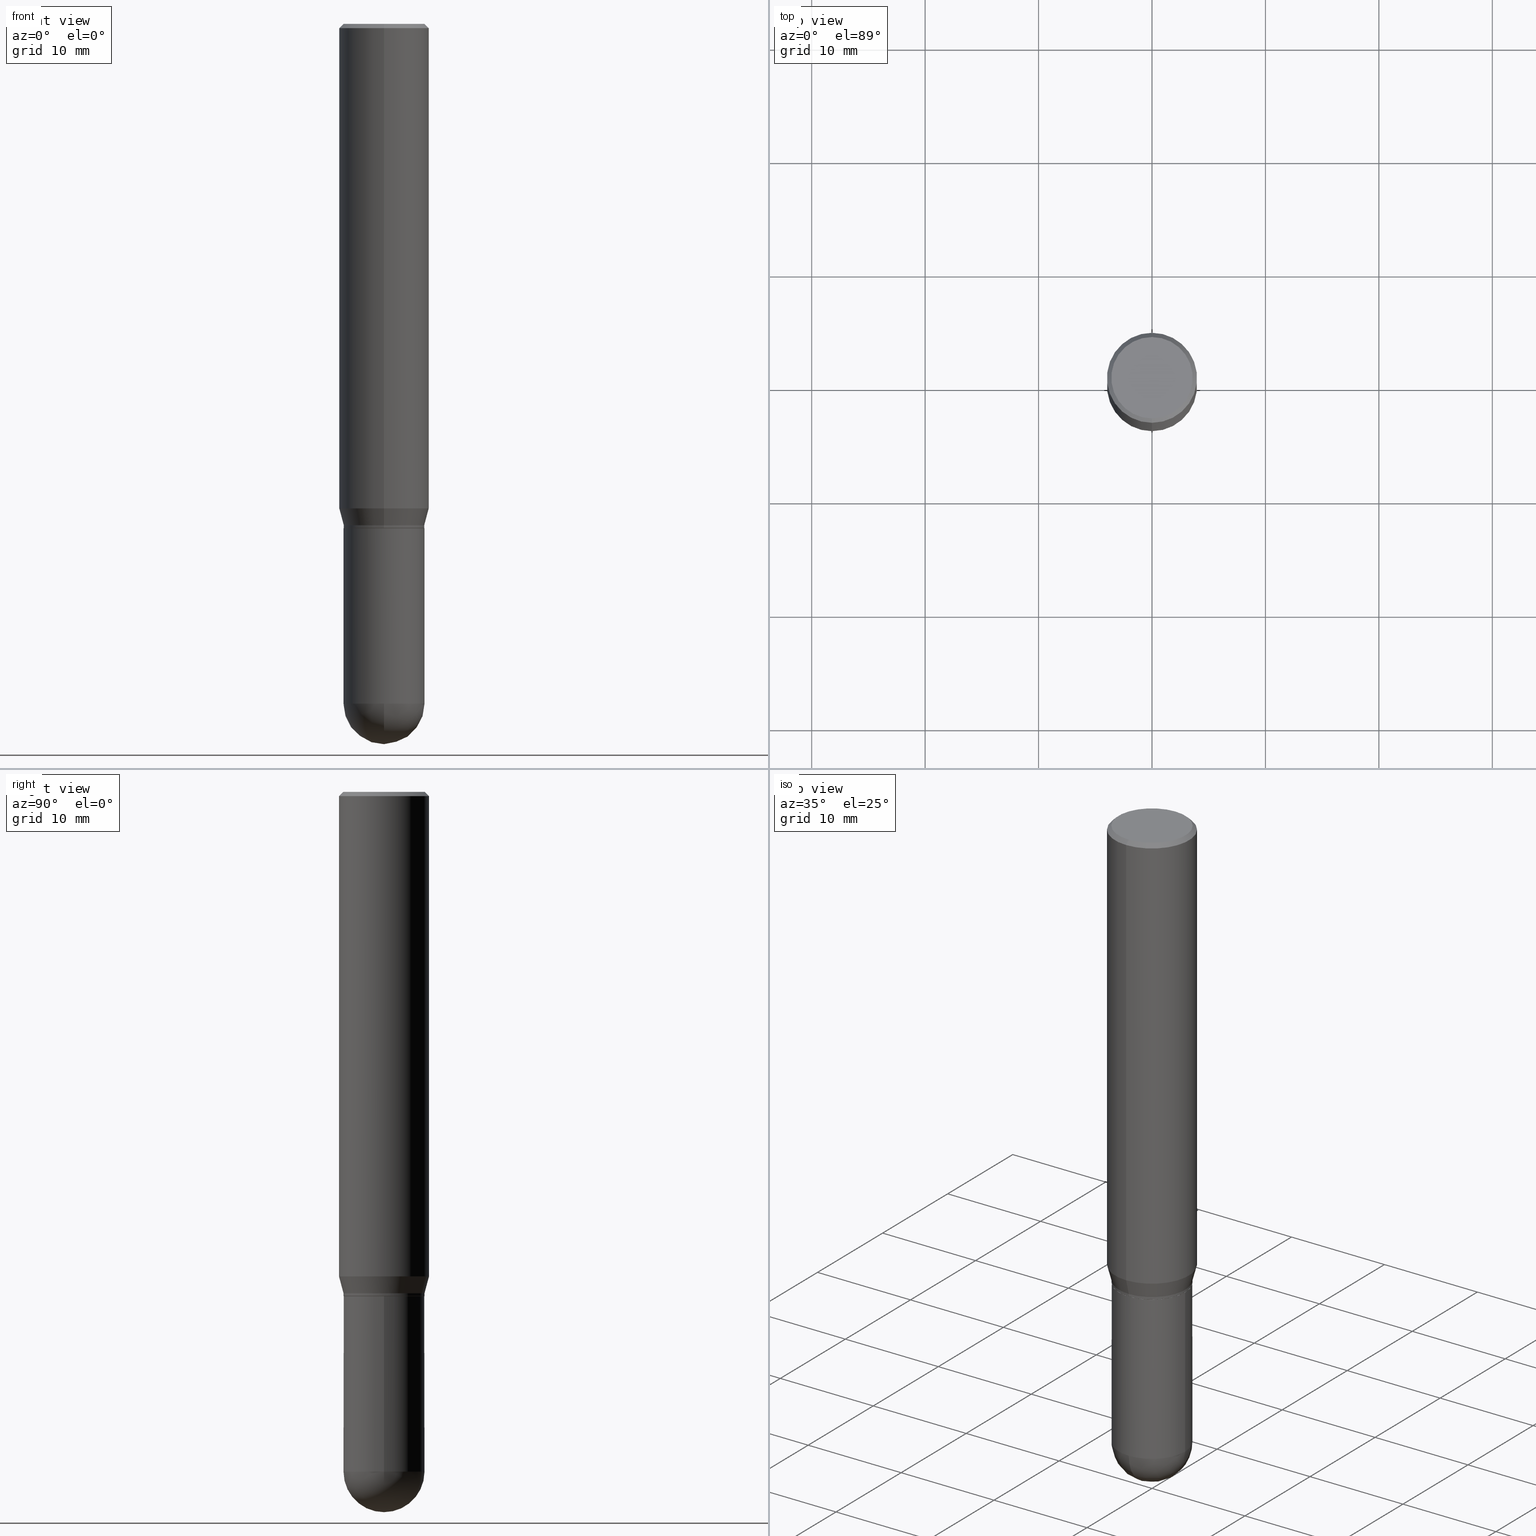
[diagram: canonical four-view strip — front | top / right | iso, engineering-drawing reading convention]
A machine part, canonical four-view strip (front | top / right | iso — engineering-drawing reading convention). The complete STEP part file that produces these views, byte-faithful:
ISO-10303-21;
HEADER;
FILE_DESCRIPTION (( 'STEP AP203' ),
    '1' );
FILE_NAME ('30536.STEP',
    '2024-03-08T15:31:25',
    ( '' ),
    ( '' ),
    'SwSTEP 2.0',
    'SolidWorks 2023',
    '' );
FILE_SCHEMA (( 'CONFIG_CONTROL_DESIGN' ));
ENDSEC;

DATA;
#1 = EDGE_LOOP ( 'NONE', ( #440, #433, #470, #113 ) ) ;
#2 = DATE_AND_TIME ( #359, #341 ) ;
#3 = DIRECTION ( 'NONE',  ( -2.445665582166115996E-29, 3.491199544438589874E-15, 1.000000000000000000 ) ) ;
#4 = DIRECTION ( 'NONE',  ( -2.445665582166115996E-29, 3.491199544438589874E-15, 1.000000000000000000 ) ) ;
#5 = CARTESIAN_POINT ( 'NONE',  ( -0.1406000000000000583, -6.174923620442310269E-15, -2.359399999999999942 ) ) ;
#6 = DESIGN_CONTEXT ( 'detailed design', #288, 'design' ) ;
#7 = CARTESIAN_POINT ( 'NONE',  ( -1.071952812151801215E-15, -0.1562500000000000833, -0.01499999999999947035 ) ) ;
#8 = EDGE_LOOP ( 'NONE', ( #322, #244, #189, #25 ) ) ;
#9 = AXIS2_PLACEMENT_3D ( 'NONE', #266, #76, #321 ) ;
#10 =( GEOMETRIC_REPRESENTATION_CONTEXT ( 3 ) GLOBAL_UNCERTAINTY_ASSIGNED_CONTEXT ( ( #286 ) ) GLOBAL_UNIT_ASSIGNED_CONTEXT ( ( #508, #312, #279 ) ) REPRESENTATION_CONTEXT ( 'NONE', 'WORKASPACE' ) );
#11 = ORIENTED_EDGE ( 'NONE', *, *, #274, .T. ) ;
#12 = CARTESIAN_POINT ( 'NONE',  ( 1.110223024625197561E-15, 0.1562499999999941436, -1.681593404861547514 ) ) ;
#13 = EDGE_CURVE ( 'NONE', #226, #354, #69, .T. ) ;
#14 = PERSON_AND_ORGANIZATION ( #396, #242 ) ;
#15 = APPROVAL_PERSON_ORGANIZATION ( #352, #365, #166 ) ;
#16 = DIRECTION ( 'NONE',  ( 1.000000000000000000, -6.982962677686270655E-15, 0.000000000000000000 ) ) ;
#17 = CYLINDRICAL_SURFACE ( 'NONE', #41, 0.1406000000000000028 ) ;
#18 = APPROVAL_ROLE ( '' ) ;
#19 = CARTESIAN_POINT ( 'NONE',  ( -9.818045524826459157E-16, -0.1406000000000059980, -1.739999999999999547 ) ) ;
#20 = DIRECTION ( 'NONE',  ( 1.000000000000000000, -6.982962677686265133E-15, 0.000000000000000000 ) ) ;
#21 = VECTOR ( 'NONE', #98, 39.37007874015748143 ) ;
#22 = LOCAL_TIME ( 10, 31, 25.00000000000000000, #152 ) ;
#23 = EDGE_CURVE ( 'NONE', #24, #234, #492, .T. ) ;
#24 = VERTEX_POINT ( 'NONE', #28 ) ;
#25 = ORIENTED_EDGE ( 'NONE', *, *, #232, .F. ) ;
#26 = PERSON_AND_ORGANIZATION_ROLE ( 'design_supplier' ) ;
#27 = DIRECTION ( 'NONE',  ( -2.445665582166115996E-29, 3.491199544438589874E-15, 1.000000000000000000 ) ) ;
#28 = CARTESIAN_POINT ( 'NONE',  ( 9.972467296393428329E-16, 0.1400999999999938961, -1.750000000000000666 ) ) ;
#29 = CARTESIAN_POINT ( 'NONE',  ( 0.000000000000000000, 0.000000000000000000, 0.000000000000000000 ) ) ;
#30 = DIRECTION ( 'NONE',  ( -6.982962677686265922E-15, -1.000000000000000000, 3.491199544438589874E-15 ) ) ;
#31 = VECTOR ( 'NONE', #104, 39.37007874015748143 ) ;
#32 = AXIS2_PLACEMENT_3D ( 'NONE', #307, #115, #265 ) ;
#33 = CARTESIAN_POINT ( 'NONE',  ( -9.783130711438031058E-16, -0.1401000000000061085, -1.749999999999999556 ) ) ;
#34 = DIRECTION ( 'NONE',  ( 1.000000000000000000, -6.982962677686270655E-15, 0.000000000000000000 ) ) ;
#35 = ORIENTED_EDGE ( 'NONE', *, *, #428, .F. ) ;
#36 = CARTESIAN_POINT ( 'NONE',  ( 0.1406000000000000028, -9.818045524826893030E-16, 6.855904546769086274E-30 ) ) ;
#37 = COORDINATED_UNIVERSAL_TIME_OFFSET ( 5, 0, .BEHIND. ) ;
#38 = CARTESIAN_POINT ( 'NONE',  ( -0.1406000000000000028, 9.990230864787008809E-16, -6.916022736898399140E-30 ) ) ;
#39 = PERSON_AND_ORGANIZATION ( #396, #242 ) ;
#40 = DIRECTION ( 'NONE',  ( 6.982962677686265922E-15, 1.000000000000000000, -3.885985766236502230E-15 ) ) ;
#41 = AXIS2_PLACEMENT_3D ( 'NONE', #29, #74, #260 ) ;
#42 = DIRECTION ( 'NONE',  ( 0.000000000000000000, 0.000000000000000000, 1.000000000000000000 ) ) ;
#43 = EDGE_LOOP ( 'NONE', ( #45, #284, #267, #70 ) ) ;
#44 = CARTESIAN_POINT ( 'NONE',  ( 9.818045524827470871E-16, 0.1405999999999918426, -2.359400000000000386 ) ) ;
#45 = ORIENTED_EDGE ( 'NONE', *, *, #493, .F. ) ;
#46 = DIRECTION ( 'NONE',  ( -2.445665582166115996E-29, 3.491199544438589874E-15, 1.000000000000000000 ) ) ;
#47 = CARTESIAN_POINT ( 'NONE',  ( 0.000000000000000000, 0.000000000000000000, 0.000000000000000000 ) ) ;
#48 = EDGE_LOOP ( 'NONE', ( #427, #269, #361, #324, #140 ) ) ;
#49 = AXIS2_PLACEMENT_3D ( 'NONE', #47, #42, #208 ) ;
#50 = DIRECTION ( 'NONE',  ( -2.445665582166115716E-29, 3.491199544438589874E-15, 1.000000000000000000 ) ) ;
#51 = CYLINDRICAL_SURFACE ( 'NONE', #32, 0.1562500000000000000 ) ;
#52 = CC_DESIGN_PERSON_AND_ORGANIZATION_ASSIGNMENT ( #227, #236, ( #401 ) ) ;
#53 = AXIS2_PLACEMENT_3D ( 'NONE', #294, #454, #450 ) ;
#54 = AXIS2_PLACEMENT_3D ( 'NONE', #78, #305, #225 ) ;
#55 = CARTESIAN_POINT ( 'NONE',  ( 5.769839101313211634E-29, -8.237801070866517629E-15, -2.359399999999999942 ) ) ;
#56 = DIRECTION ( 'NONE',  ( -6.982962677686265922E-15, -1.000000000000000000, 3.899854380677035588E-15 ) ) ;
#57 = DIRECTION ( 'NONE',  ( 2.445665582166115996E-29, -3.491199544438589874E-15, -1.000000000000000000 ) ) ;
#58 = DIRECTION ( 'NONE',  ( -2.445468806185136597E-29, 3.491481338843145583E-15, 1.000000000000000000 ) ) ;
#59 = DIRECTION ( 'NONE',  ( -2.445665582166115996E-29, 3.491199544438589874E-15, 1.000000000000000000 ) ) ;
#60 = EDGE_LOOP ( 'NONE', ( #469, #395 ) ) ;
#61 = CARTESIAN_POINT ( 'NONE',  ( -0.1406000000000000028, -6.174923620442310269E-15, -1.750000000000000222 ) ) ;
#62 = CYLINDRICAL_SURFACE ( 'NONE', #155, 0.1405999999999999195 ) ;
#63 = DIMENSIONAL_EXPONENTS ( 1.000000000000000000, 0.000000000000000000, 0.000000000000000000, 0.000000000000000000, 0.000000000000000000, 0.000000000000000000, 0.000000000000000000 ) ;
#64 = AXIS2_PLACEMENT_3D ( 'NONE', #228, #123, #89 ) ;
#65 = CIRCLE ( 'NONE', #394, 0.1562500000000000000 ) ;
#66 = PLANE ( 'NONE',  #276 ) ;
#67 = CC_DESIGN_DATE_AND_TIME_ASSIGNMENT ( #507, #121, ( #460 ) ) ;
#68 = EDGE_CURVE ( 'NONE', #431, #162, #496, .T. ) ;
#69 = LINE ( 'NONE', #290, #186 ) ;
#70 = ORIENTED_EDGE ( 'NONE', *, *, #353, .F. ) ;
#71 = APPROVAL_STATUS ( 'not_yet_approved' ) ;
#72 = ADVANCED_FACE ( 'NONE', ( #447 ), #193, .F. ) ;
#73 = ORIENTED_EDGE ( 'NONE', *, *, #68, .T. ) ;
#74 = DIRECTION ( 'NONE',  ( -2.445468806185136597E-29, 3.491481338843145583E-15, 1.000000000000000000 ) ) ;
#75 = DATE_TIME_ROLE ( 'creation_date' ) ;
#76 = DIRECTION ( 'NONE',  ( -2.445665582166115996E-29, 3.491199544438589874E-15, 1.000000000000000000 ) ) ;
#77 = CIRCLE ( 'NONE', #414, 0.1406000000000000305 ) ;
#78 = CARTESIAN_POINT ( 'NONE',  ( 5.757815463287349061E-29, -8.255019604862529009E-15, -2.359399999999999942 ) ) ;
#79 = CIRCLE ( 'NONE', #326, 0.1562500000000000000 ) ;
#80 = DIRECTION ( 'NONE',  ( -2.445665582166115996E-29, 3.491199544438589874E-15, 1.000000000000000000 ) ) ;
#81 = ORIENTED_EDGE ( 'NONE', *, *, #271, .F. ) ;
#82 = DIRECTION ( 'NONE',  ( -2.445468806185136597E-29, 3.491481338843145583E-15, 1.000000000000000000 ) ) ;
#83 = VERTEX_POINT ( 'NONE', #406 ) ;
#84 = PERSON_AND_ORGANIZATION ( #396, #242 ) ;
#85 = CARTESIAN_POINT ( 'NONE',  ( 4.139469948881899013E-46, -5.909113537491046332E-32, -1.692573988474575902E-17 ) ) ;
#86 = ORIENTED_EDGE ( 'NONE', *, *, #468, .F. ) ;
#87 = AXIS2_PLACEMENT_3D ( 'NONE', #348, #139, #430 ) ;
#88 = AXIS2_PLACEMENT_3D ( 'NONE', #199, #390, #40 ) ;
#89 = DIRECTION ( 'NONE',  ( 6.982962677686266711E-15, 1.000000000000000000, 0.000000000000000000 ) ) ;
#90 = ADVANCED_FACE ( 'NONE', ( #262 ), #109, .T. ) ;
#91 = ADVANCED_FACE ( 'NONE', ( #107 ), #62, .T. ) ;
#92 = CARTESIAN_POINT ( 'NONE',  ( 0.1406000000000000028, -7.091896895458194566E-15, -1.750000000000000222 ) ) ;
#93 = CC_DESIGN_DATE_AND_TIME_ASSIGNMENT ( #197, #75, ( #184 ) ) ;
#94 = COORDINATED_UNIVERSAL_TIME_OFFSET ( 5, 0, .BEHIND. ) ;
#95 = VECTOR ( 'NONE', #50, 39.37007874015748143 ) ;
#96 = MANIFOLD_SOLID_BREP ( 'Body-Move/Copy2[2]', #477 ) ;
#97 = ADVANCED_FACE ( 'NONE', ( #418 ), #458, .T. ) ;
#98 = DIRECTION ( 'NONE',  ( -4.937700262164631661E-15, -0.7071067811865571207, 0.7071067811865379138 ) ) ;
#99 = CLOSED_SHELL ( 'NONE', ( #336, #159, #399, #481, #397 ) ) ;
#100 = EDGE_CURVE ( 'NONE', #131, #83, #497, .T. ) ;
#101 = DIRECTION ( 'NONE',  ( 5.024295867788147587E-15, 0.7071067811865620056, 0.7071067811865330288 ) ) ;
#102 = AXIS2_PLACEMENT_3D ( 'NONE', #183, #27, #214 ) ;
#103 = CARTESIAN_POINT ( 'NONE',  ( 4.279570410823989044E-29, -6.110092342975505460E-15, -1.750000000000000222 ) ) ;
#104 = DIRECTION ( 'NONE',  ( 1.839019923739597160E-15, 0.2588190451025245142, 0.9659258262890673130 ) ) ;
#105 = DIRECTION ( 'NONE',  ( -2.445665582166115716E-29, 3.491199544438589874E-15, 1.000000000000000000 ) ) ;
#106 = DIRECTION ( 'NONE',  ( -6.982962677686265133E-15, -1.000000000000000000, 3.885985766236507752E-15 ) ) ;
#107 = FACE_OUTER_BOUND ( 'NONE', #151, .T. ) ;
#108 = CARTESIAN_POINT ( 'NONE',  ( -1.091087918388478976E-15, -0.1562500000000000000, 5.454999288185296309E-16 ) ) ;
#109 = CONICAL_SURFACE ( 'NONE', #466, 0.1405999999999999195, 0.2617993877991497964 ) ;
#110 = CIRCLE ( 'NONE', #220, 0.1406000000000000305 ) ;
#111 = CARTESIAN_POINT ( 'NONE',  ( 1.091087918388479371E-15, 0.1562499999999999445, -0.01500000000000056323 ) ) ;
#112 = EDGE_CURVE ( 'NONE', #24, #243, #219, .T. ) ;
#113 = ORIENTED_EDGE ( 'NONE', *, *, #498, .T. ) ;
#114 = LINE ( 'NONE', #111, #283 ) ;
#115 = DIRECTION ( 'NONE',  ( -2.445665582166115996E-29, 3.491199544438589874E-15, 1.000000000000000000 ) ) ;
#116 = FACE_OUTER_BOUND ( 'NONE', #48, .T. ) ;
#117 = ORIENTED_EDGE ( 'NONE', *, *, #328, .T. ) ;
#118 = AXIS2_PLACEMENT_3D ( 'NONE', #462, #181, #56 ) ;
#119 = ORIENTED_EDGE ( 'NONE', *, *, #441, .T. ) ;
#120 = APPLICATION_PROTOCOL_DEFINITION ( 'international standard', 'config_control_design', 1994, #288 ) ;
#121 = DATE_TIME_ROLE ( 'classification_date' ) ;
#122 = DIRECTION ( 'NONE',  ( -6.982962677686265133E-15, -1.000000000000000000, 3.496765431890256920E-15 ) ) ;
#123 = DIRECTION ( 'NONE',  ( 1.000000000000000000, -6.982962677686265922E-15, 4.883557194083112340E-29 ) ) ;
#124 = ORIENTED_EDGE ( 'NONE', *, *, #443, .F. ) ;
#125 = SHAPE_DEFINITION_REPRESENTATION ( #340, #318 ) ;
#126 = CIRCLE ( 'NONE', #303, 0.1406000000000000305 ) ;
#127 = DIRECTION ( 'NONE',  ( -6.982962677686265133E-15, -1.000000000000000000, 3.885985766236507752E-15 ) ) ;
#128 = CIRCLE ( 'NONE', #156, 0.1562500000000000000 ) ;
#129 = CARTESIAN_POINT ( 'NONE',  ( 1.054623055551970126E-15, 0.1405999999999938410, -1.740000000000000657 ) ) ;
#130 = EDGE_LOOP ( 'NONE', ( #158, #417 ) ) ;
#131 = VERTEX_POINT ( 'NONE', #308 ) ;
#132 = VERTEX_POINT ( 'NONE', #463 ) ;
#133 = LOCAL_TIME ( 10, 31, 25.00000000000000000, #182 ) ;
#134 = EDGE_LOOP ( 'NONE', ( #490, #163, #200, #330 ) ) ;
#135 = CARTESIAN_POINT ( 'NONE',  ( 6.107660196449910766E-29, -8.737312614105869844E-15, -2.500000000000000000 ) ) ;
#136 = FACE_OUTER_BOUND ( 'NONE', #134, .T. ) ;
#137 = EDGE_CURVE ( 'NONE', #175, #230, #77, .T. ) ;
#138 = DIRECTION ( 'NONE',  ( -2.445665582166115996E-29, 3.491199544438589874E-15, 1.000000000000000000 ) ) ;
#139 = DIRECTION ( 'NONE',  ( -2.445665582166115996E-29, 3.491199544438589874E-15, 1.000000000000000000 ) ) ;
#140 = ORIENTED_EDGE ( 'NONE', *, *, #432, .T. ) ;
#141 = DIRECTION ( 'NONE',  ( -6.982962677686265922E-15, -1.000000000000000000, 3.899854380677035588E-15 ) ) ;
#142 = DIRECTION ( 'NONE',  ( -6.982962677686266711E-15, -1.000000000000000000, 3.885985766236507752E-15 ) ) ;
#143 = VECTOR ( 'NONE', #174, 39.37007874015748143 ) ;
#144 = PRODUCT_RELATED_PRODUCT_CATEGORY ( 'detail', '', ( #401 ) ) ;
#145 = DIRECTION ( 'NONE',  ( 6.982962677686265922E-15, 1.000000000000000000, -3.491199544438589874E-15 ) ) ;
#146 = EDGE_CURVE ( 'NONE', #243, #24, #387, .T. ) ;
#147 = DIRECTION ( 'NONE',  ( 2.445665582166115716E-29, -3.491199544438589874E-15, -1.000000000000000000 ) ) ;
#148 = EDGE_CURVE ( 'NONE', #256, #175, #473, .T. ) ;
#149 = AXIS2_PLACEMENT_3D ( 'NONE', #264, #424, #499 ) ;
#150 = CIRCLE ( 'NONE', #388, 0.1406000000000000028 ) ;
#151 = EDGE_LOOP ( 'NONE', ( #187, #355, #503, #86 ) ) ;
#152 = COORDINATED_UNIVERSAL_TIME_OFFSET ( 5, 0, .BEHIND. ) ;
#153 = EDGE_CURVE ( 'NONE', #243, #226, #380, .T. ) ;
#154 = EDGE_LOOP ( 'NONE', ( #246, #273, #299, #506 ) ) ;
#155 = AXIS2_PLACEMENT_3D ( 'NONE', #374, #415, #301 ) ;
#156 = AXIS2_PLACEMENT_3D ( 'NONE', #164, #317, #169 ) ;
#157 = CARTESIAN_POINT ( 'NONE',  ( 4.279914768790703134E-29, -6.109599202767532182E-15, -1.750000000000000222 ) ) ;
#158 = ORIENTED_EDGE ( 'NONE', *, *, #211, .T. ) ;
#159 = ADVANCED_FACE ( 'NONE', ( #238 ), #334, .T. ) ;
#160 = ORIENTED_EDGE ( 'NONE', *, *, #295, .T. ) ;
#161 = DIRECTION ( 'NONE',  ( -2.445665582166115996E-29, 3.491199544438589874E-15, 1.000000000000000000 ) ) ;
#162 = VERTEX_POINT ( 'NONE', #171 ) ;
#163 = ORIENTED_EDGE ( 'NONE', *, *, #224, .T. ) ;
#164 = CARTESIAN_POINT ( 'NONE',  ( 3.668498373249178251E-31, -5.236799316657890950E-17, -0.01500000000000001679 ) ) ;
#165 = ORIENTED_EDGE ( 'NONE', *, *, #23, .T. ) ;
#166 = APPROVAL_ROLE ( '' ) ;
#167 = APPROVAL ( #272, 'UNSPECIFIED' ) ;
#168 = AXIS2_PLACEMENT_3D ( 'NONE', #337, #147, #145 ) ;
#169 = DIRECTION ( 'NONE',  ( -6.982962677686265133E-15, -1.000000000000000000, 3.496765431890256920E-15 ) ) ;
#170 = DIRECTION ( 'NONE',  ( -4.851104656540965064E-15, -0.7071067811865501263, -0.7071067811865449082 ) ) ;
#171 = CARTESIAN_POINT ( 'NONE',  ( -1.091087918388478779E-15, -0.1562500000000000833, -0.01499999999999947035 ) ) ;
#172 = ORIENTED_EDGE ( 'NONE', *, *, #137, .F. ) ;
#173 = VERTEX_POINT ( 'NONE', #92 ) ;
#174 = DIRECTION ( 'NONE',  ( -2.445468806185136877E-29, 3.491481338843145188E-15, 1.000000000000000000 ) ) ;
#175 = VERTEX_POINT ( 'NONE', #44 ) ;
#176 = AXIS2_PLACEMENT_3D ( 'NONE', #483, #138, #142 ) ;
#177 = CC_DESIGN_APPROVAL ( #471, ( #373 ) ) ;
#178 = LINE ( 'NONE', #190, #31 ) ;
#179 = ADVANCED_FACE ( 'NONE', ( #335 ), #292, .T. ) ;
#180 = CARTESIAN_POINT ( 'NONE',  ( 5.769839101313211634E-29, -8.237801070866517629E-15, -2.359399999999999942 ) ) ;
#181 = DIRECTION ( 'NONE',  ( -2.445665582166115996E-29, 3.491199544438589874E-15, 1.000000000000000000 ) ) ;
#182 = COORDINATED_UNIVERSAL_TIME_OFFSET ( 5, 0, .BEHIND. ) ;
#183 = CARTESIAN_POINT ( 'NONE',  ( 0.000000000000000000, 0.000000000000000000, 0.000000000000000000 ) ) ;
#184 = PRODUCT_DEFINITION ( 'UNKNOWN', '', #373, #6 ) ;
#185 = LINE ( 'NONE', #487, #356 ) ;
#186 = VECTOR ( 'NONE', #222, 39.37007874015748143 ) ;
#187 = ORIENTED_EDGE ( 'NONE', *, *, #224, .F. ) ;
#188 = AXIS2_PLACEMENT_3D ( 'NONE', #360, #237, #429 ) ;
#189 = ORIENTED_EDGE ( 'NONE', *, *, #432, .F. ) ;
#190 = CARTESIAN_POINT ( 'NONE',  ( 9.990230864787428877E-16, 0.1405999999999938410, -1.740000000000000657 ) ) ;
#191 = EDGE_CURVE ( 'NONE', #354, #366, #314, .T. ) ;
#192 = DIRECTION ( 'NONE',  ( -2.445665582166115716E-29, 3.491199544438589874E-15, 1.000000000000000000 ) ) ;
#193 = PLANE ( 'NONE',  #168 ) ;
#194 = CONICAL_SURFACE ( 'NONE', #249, 0.1401000000000000023, 0.7853981633974653764 ) ;
#195 = CIRCLE ( 'NONE', #202, 0.1562500000000000000 ) ;
#196 = CC_DESIGN_APPROVAL ( #365, ( #460 ) ) ;
#197 = DATE_AND_TIME ( #452, #333 ) ;
#198 = ORIENTED_EDGE ( 'NONE', *, *, #441, .F. ) ;
#199 = CARTESIAN_POINT ( 'NONE',  ( 5.757815463287349061E-29, -8.255019604862529009E-15, -2.359399999999999942 ) ) ;
#200 = ORIENTED_EDGE ( 'NONE', *, *, #191, .F. ) ;
#201 = ORIENTED_EDGE ( 'NONE', *, *, #191, .T. ) ;
#202 = AXIS2_PLACEMENT_3D ( 'NONE', #327, #161, #323 ) ;
#203 = MECHANICAL_CONTEXT ( 'NONE', #261, 'mechanical' ) ;
#204 = DIRECTION ( 'NONE',  ( -2.445468806185136597E-29, 3.491481338843145583E-15, 1.000000000000000000 ) ) ;
#205 = DIRECTION ( 'NONE',  ( -2.445665582166115996E-29, 3.491199544438589874E-15, 1.000000000000000000 ) ) ;
#206 = EDGE_LOOP ( 'NONE', ( #451, #313, #474, #172 ) ) ;
#207 = ORIENTED_EDGE ( 'NONE', *, *, #153, .T. ) ;
#208 = DIRECTION ( 'NONE',  ( 1.000000000000000000, 0.000000000000000000, 0.000000000000000000 ) ) ;
#209 = VECTOR ( 'NONE', #464, 39.37007874015748143 ) ;
#210 = ORIENTED_EDGE ( 'NONE', *, *, #498, .F. ) ;
#211 = EDGE_CURVE ( 'NONE', #173, #311, #349, .T. ) ;
#212 = DIRECTION ( 'NONE',  ( -2.445665582166115996E-29, 3.491199544438589874E-15, 1.000000000000000000 ) ) ;
#213 = AXIS2_PLACEMENT_3D ( 'NONE', #419, #215, #106 ) ;
#214 = DIRECTION ( 'NONE',  ( -6.982962677686266711E-15, -1.000000000000000000, 3.491199544438589874E-15 ) ) ;
#215 = DIRECTION ( 'NONE',  ( -2.445665582166115996E-29, 3.491199544438589874E-15, 1.000000000000000000 ) ) ;
#216 = DIRECTION ( 'NONE',  ( 2.445665582166115996E-29, -3.491199544438589874E-15, -1.000000000000000000 ) ) ;
#217 = APPROVAL_DATE_TIME ( #494, #471 ) ;
#218 = LINE ( 'NONE', #19, #304 ) ;
#219 = CIRCLE ( 'NONE', #241, 0.1401000000000000023 ) ;
#220 = AXIS2_PLACEMENT_3D ( 'NONE', #467, #204, #239 ) ;
#221 = DIRECTION ( 'NONE',  ( -6.982962677686265133E-15, -1.000000000000000000, 3.496765431890256920E-15 ) ) ;
#222 = DIRECTION ( 'NONE',  ( -2.445665582166115716E-29, 3.491199544438589874E-15, 1.000000000000000000 ) ) ;
#223 = CIRCLE ( 'NONE', #426, 0.1405999999999999195 ) ;
#224 = EDGE_CURVE ( 'NONE', #234, #366, #185, .T. ) ;
#225 = DIRECTION ( 'NONE',  ( -7.105427357601001859E-15, -1.000000000000000000, 0.000000000000000000 ) ) ;
#226 = VERTEX_POINT ( 'NONE', #410 ) ;
#227 = PERSON_AND_ORGANIZATION ( #396, #242 ) ;
#228 = CARTESIAN_POINT ( 'NONE',  ( 5.757815463287349061E-29, -8.255019604862529009E-15, -2.359399999999999942 ) ) ;
#229 = VERTEX_POINT ( 'NONE', #12 ) ;
#230 = VERTEX_POINT ( 'NONE', #5 ) ;
#231 = CALENDAR_DATE ( 2024, 8, 3 ) ;
#232 = EDGE_CURVE ( 'NONE', #132, #423, #126, .T. ) ;
#233 = DIRECTION ( 'NONE',  ( -2.445665582166115996E-29, 3.491199544438589874E-15, 1.000000000000000000 ) ) ;
#234 = VERTEX_POINT ( 'NONE', #338 ) ;
#235 = LOCAL_TIME ( 10, 31, 25.00000000000000000, #37 ) ;
#236 = PERSON_AND_ORGANIZATION_ROLE ( 'design_owner' ) ;
#237 = DIRECTION ( 'NONE',  ( -2.445665582166115996E-29, 3.491199544438589874E-15, 1.000000000000000000 ) ) ;
#238 = FACE_OUTER_BOUND ( 'NONE', #206, .T. ) ;
#239 = DIRECTION ( 'NONE',  ( 1.000000000000000000, -6.982962677686270655E-15, 0.000000000000000000 ) ) ;
#240 = ORIENTED_EDGE ( 'NONE', *, *, #146, .F. ) ;
#241 = AXIS2_PLACEMENT_3D ( 'NONE', #157, #233, #422 ) ;
#242 = ORGANIZATION ( 'UNSPECIFIED', 'UNSPECIFIED', '' ) ;
#243 = VERTEX_POINT ( 'NONE', #409 ) ;
#244 = ORIENTED_EDGE ( 'NONE', *, *, #148, .T. ) ;
#245 = CC_DESIGN_PERSON_AND_ORGANIZATION_ASSIGNMENT ( #456, #26, ( #373 ) ) ;
#246 = ORIENTED_EDGE ( 'NONE', *, *, #443, .T. ) ;
#247 = DIRECTION ( 'NONE',  ( 1.000000000000000000, -6.982962677686265133E-15, 0.000000000000000000 ) ) ;
#248 = DIRECTION ( 'NONE',  ( 6.982962677686265133E-15, 1.000000000000000000, -3.496765431890256920E-15 ) ) ;
#249 = AXIS2_PLACEMENT_3D ( 'NONE', #371, #212, #141 ) ;
#250 = CONICAL_SURFACE ( 'NONE', #118, 0.1401000000000000023, 0.7853981633974653764 ) ;
#251 = DIRECTION ( 'NONE',  ( 2.438088387897960049E-29, -3.491481338843145188E-15, -1.000000000000000000 ) ) ;
#252 = CARTESIAN_POINT ( 'NONE',  ( 3.668498373249178251E-31, -5.236799316657890950E-17, -0.01500000000000001679 ) ) ;
#253 = EDGE_LOOP ( 'NONE', ( #281, #165, #35, #385 ) ) ;
#254 = ORIENTED_EDGE ( 'NONE', *, *, #112, .F. ) ;
#255 = FACE_OUTER_BOUND ( 'NONE', #319, .T. ) ;
#256 = VERTEX_POINT ( 'NONE', #135 ) ;
#257 = ADVANCED_FACE ( 'NONE', ( #289 ), #194, .T. ) ;
#258 = DIRECTION ( 'NONE',  ( -2.445665582166115716E-29, 3.491199544438589874E-15, 1.000000000000000000 ) ) ;
#259 = DIRECTION ( 'NONE',  ( 6.982962677686265133E-15, 1.000000000000000000, -3.496765431890256920E-15 ) ) ;
#260 = DIRECTION ( 'NONE',  ( 1.000000000000000000, -6.982962677686268288E-15, 4.876176775795936353E-29 ) ) ;
#261 = APPLICATION_CONTEXT ( 'configuration controlled 3d designs of mechanical parts and assemblies' ) ;
#262 = FACE_OUTER_BOUND ( 'NONE', #485, .T. ) ;
#263 = CARTESIAN_POINT ( 'NONE',  ( -9.818045524826459157E-16, -0.1406000000000059980, -1.739999999999999547 ) ) ;
#264 = CARTESIAN_POINT ( 'NONE',  ( 0.000000000000000000, 0.000000000000000000, 0.000000000000000000 ) ) ;
#265 = DIRECTION ( 'NONE',  ( -6.982962677686265133E-15, -1.000000000000000000, 3.491199544438589480E-15 ) ) ;
#266 = CARTESIAN_POINT ( 'NONE',  ( 4.279914768790703134E-29, -6.109599202767532182E-15, -1.750000000000000222 ) ) ;
#267 = ORIENTED_EDGE ( 'NONE', *, *, #509, .T. ) ;
#268 = CIRCLE ( 'NONE', #54, 0.1406000000000000860 ) ;
#269 = ORIENTED_EDGE ( 'NONE', *, *, #479, .T. ) ;
#270 = SECURITY_CLASSIFICATION_LEVEL ( 'unclassified' ) ;
#271 = EDGE_CURVE ( 'NONE', #229, #280, #404, .T. ) ;
#272 = APPROVAL_STATUS ( 'not_yet_approved' ) ;
#273 = ORIENTED_EDGE ( 'NONE', *, *, #271, .T. ) ;
#274 = EDGE_CURVE ( 'NONE', #230, #132, #372, .T. ) ;
#275 = FACE_OUTER_BOUND ( 'NONE', #8, .T. ) ;
#276 = AXIS2_PLACEMENT_3D ( 'NONE', #376, #192, #30 ) ;
#277 = LINE ( 'NONE', #38, #209 ) ;
#278 = ORIENTED_EDGE ( 'NONE', *, *, #328, .F. ) ;
#279 =( NAMED_UNIT ( * ) SI_UNIT ( $, .STERADIAN. ) SOLID_ANGLE_UNIT ( ) );
#280 = VERTEX_POINT ( 'NONE', #449 ) ;
#281 = ORIENTED_EDGE ( 'NONE', *, *, #146, .T. ) ;
#282 = ORIENTED_EDGE ( 'NONE', *, *, #232, .T. ) ;
#283 = VECTOR ( 'NONE', #495, 39.37007874015748143 ) ;
#284 = ORIENTED_EDGE ( 'NONE', *, *, #362, .T. ) ;
#285 = ADVANCED_FACE ( 'NONE', ( #482 ), #325, .T. ) ;
#286 = UNCERTAINTY_MEASURE_WITH_UNIT (LENGTH_MEASURE( 1.000000000000000082E-05 ), #508, 'distance_accuracy_value', 'NONE');
#287 = DIRECTION ( 'NONE',  ( 6.982962677686265922E-15, 1.000000000000000000, -3.885985766236502230E-15 ) ) ;
#288 = APPLICATION_CONTEXT ( 'configuration controlled 3d designs of mechanical parts and assemblies' ) ;
#289 = FACE_OUTER_BOUND ( 'NONE', #253, .T. ) ;
#290 = CARTESIAN_POINT ( 'NONE',  ( -9.818045524826885142E-16, -0.1405999999999999195, 4.908626559480654289E-16 ) ) ;
#291 = CARTESIAN_POINT ( 'NONE',  ( 1.110223024625156343E-15, 0.1562500000000000000, -5.454999288185296309E-16 ) ) ;
#292 = CONICAL_SURFACE ( 'NONE', #176, 0.1405999999999999195, 0.2617993877991497964 ) ;
#293 = FACE_OUTER_BOUND ( 'NONE', #154, .T. ) ;
#294 = CARTESIAN_POINT ( 'NONE',  ( 4.255458112969042024E-29, -6.074687207323146279E-15, -1.739999999999999991 ) ) ;
#295 = EDGE_CURVE ( 'NONE', #366, #229, #178, .T. ) ;
#296 = CARTESIAN_POINT ( 'NONE',  ( 9.954703727999429753E-16, 0.1400999999999938961, -1.750000000000000666 ) ) ;
#297 = CARTESIAN_POINT ( 'NONE',  ( 4.112615113467415944E-29, -5.870778128983569149E-15, -1.681593404861546848 ) ) ;
#298 = DIRECTION ( 'NONE',  ( -6.982962677686266711E-15, -1.000000000000000000, 3.885985766236507752E-15 ) ) ;
#299 = ORIENTED_EDGE ( 'NONE', *, *, #509, .F. ) ;
#300 = PERSON_AND_ORGANIZATION_ROLE ( 'creator' ) ;
#301 = DIRECTION ( 'NONE',  ( -6.982962677686266711E-15, -1.000000000000000000, 3.491199544438589874E-15 ) ) ;
#302 = ADVANCED_FACE ( 'NONE', ( #136 ), #446, .T. ) ;
#303 = AXIS2_PLACEMENT_3D ( 'NONE', #180, #398, #484 ) ;
#304 = VECTOR ( 'NONE', #491, 39.37007874015748143 ) ;
#305 = DIRECTION ( 'NONE',  ( -1.000000000000000000, 7.105427357601001070E-15, -4.926315508542082329E-29 ) ) ;
#306 = ADVANCED_FACE ( 'NONE', ( #453 ), #369, .T. ) ;
#307 = CARTESIAN_POINT ( 'NONE',  ( 0.000000000000000000, 0.000000000000000000, 0.000000000000000000 ) ) ;
#308 = CARTESIAN_POINT ( 'NONE',  ( 1.038715698305832292E-15, 0.1412499999999999867, -5.100576755366965605E-16 ) ) ;
#309 = PLANE ( 'NONE',  #486 ) ;
#310 = DIRECTION ( 'NONE',  ( -6.982962677686265922E-15, -1.000000000000000000, 3.491199544438590663E-15 ) ) ;
#311 = VERTEX_POINT ( 'NONE', #61 ) ;
#312 =( NAMED_UNIT ( * ) PLANE_ANGLE_UNIT ( ) SI_UNIT ( $, .RADIAN. ) );
#313 = ORIENTED_EDGE ( 'NONE', *, *, #344, .T. ) ;
#314 = CIRCLE ( 'NONE', #53, 0.1405999999999999195 ) ;
#315 = CC_DESIGN_APPROVAL ( #167, ( #184 ) ) ;
#316 = CALENDAR_DATE ( 2024, 8, 3 ) ;
#317 = DIRECTION ( 'NONE',  ( -2.445665582166115996E-29, 3.491199544438589874E-15, 1.000000000000000000 ) ) ;
#318 = ADVANCED_BREP_SHAPE_REPRESENTATION ( '30536', ( #420, #96, #49 ), #10 ) ;
#319 = EDGE_LOOP ( 'NONE', ( #329, #11, #282, #505, #465 ) ) ;
#320 =( LENGTH_UNIT ( ) NAMED_UNIT ( * ) SI_UNIT ( $, .METRE. ) );
#321 = DIRECTION ( 'NONE',  ( -6.982962677686265922E-15, -1.000000000000000000, 3.899854380677035588E-15 ) ) ;
#322 = ORIENTED_EDGE ( 'NONE', *, *, #344, .F. ) ;
#323 = DIRECTION ( 'NONE',  ( -6.982962677686265133E-15, -1.000000000000000000, 3.496765431890256920E-15 ) ) ;
#324 = ORIENTED_EDGE ( 'NONE', *, *, #370, .F. ) ;
#325 = CONICAL_SURFACE ( 'NONE', #436, 0.1562500000000000000, 0.7853981633974485010 ) ;
#326 = AXIS2_PLACEMENT_3D ( 'NONE', #297, #3, #122 ) ;
#327 = CARTESIAN_POINT ( 'NONE',  ( 3.668498373249178251E-31, -5.236799316657890950E-17, -0.01500000000000001679 ) ) ;
#328 = EDGE_CURVE ( 'NONE', #354, #431, #218, .T. ) ;
#329 = ORIENTED_EDGE ( 'NONE', *, *, #479, .F. ) ;
#330 = ORIENTED_EDGE ( 'NONE', *, *, #13, .F. ) ;
#331 = ADVANCED_FACE ( 'NONE', ( #413 ), #66, .F. ) ;
#332 = AXIS2_PLACEMENT_3D ( 'NONE', #85, #205, #310 ) ;
#333 = LOCAL_TIME ( 10, 31, 25.00000000000000000, #421 ) ;
#334 = SPHERICAL_SURFACE ( 'NONE', #448, 0.1406000000000000860 ) ;
#335 = FACE_OUTER_BOUND ( 'NONE', #501, .T. ) ;
#336 = ADVANCED_FACE ( 'NONE', ( #116 ), #347, .T. ) ;
#337 = CARTESIAN_POINT ( 'NONE',  ( 9.863434782231850151E-16, 0.1412499999999999867, -5.015948055943237180E-16 ) ) ;
#338 = CARTESIAN_POINT ( 'NONE',  ( 9.990230864787432822E-16, 0.1405999999999938410, -1.749500000000000721 ) ) ;
#339 = VECTOR ( 'NONE', #170, 39.37007874015748143 ) ;
#340 = PRODUCT_DEFINITION_SHAPE ( 'NONE', 'NONE',  #184 ) ;
#341 = LOCAL_TIME ( 10, 31, 25.00000000000000000, #94 ) ;
#342 = PERSON_AND_ORGANIZATION_ROLE ( 'creator' ) ;
#343 = CC_DESIGN_PERSON_AND_ORGANIZATION_ASSIGNMENT ( #346, #300, ( #373 ) ) ;
#344 = EDGE_CURVE ( 'NONE', #256, #132, #268, .T. ) ;
#345 = FACE_OUTER_BOUND ( 'NONE', #475, .T. ) ;
#346 = PERSON_AND_ORGANIZATION ( #396, #242 ) ;
#347 = CYLINDRICAL_SURFACE ( 'NONE', #149, 0.1406000000000000028 ) ;
#348 = CARTESIAN_POINT ( 'NONE',  ( 0.000000000000000000, 0.000000000000000000, 0.000000000000000000 ) ) ;
#349 = CIRCLE ( 'NONE', #459, 0.1406000000000000028 ) ;
#350 = AXIS2_PLACEMENT_3D ( 'NONE', #437, #46, #384 ) ;
#351 = PERSON_AND_ORGANIZATION ( #396, #242 ) ;
#352 = PERSON_AND_ORGANIZATION ( #396, #242 ) ;
#353 = EDGE_CURVE ( 'NONE', #131, #280, #114, .T. ) ;
#354 = VERTEX_POINT ( 'NONE', #263 ) ;
#355 = ORIENTED_EDGE ( 'NONE', *, *, #476, .T. ) ;
#356 = VECTOR ( 'NONE', #258, 39.37007874015748143 ) ;
#357 = CIRCLE ( 'NONE', #188, 0.1412499999999999867 ) ;
#358 = ORIENTED_EDGE ( 'NONE', *, *, #468, .T. ) ;
#359 = CALENDAR_DATE ( 2024, 8, 3 ) ;
#360 = CARTESIAN_POINT ( 'NONE',  ( 4.139469948881899013E-46, -5.909113537491046332E-32, -1.692573988474575902E-17 ) ) ;
#361 = ORIENTED_EDGE ( 'NONE', *, *, #211, .F. ) ;
#362 = EDGE_CURVE ( 'NONE', #83, #162, #382, .T. ) ;
#363 = CARTESIAN_POINT ( 'NONE',  ( 4.278691935999620695E-29, -6.107853602995313715E-15, -1.749500000000000277 ) ) ;
#364 = CARTESIAN_POINT ( 'NONE',  ( 5.757815463287349061E-29, -8.255019604862529009E-15, -2.359399999999999942 ) ) ;
#365 = APPROVAL ( #389, 'UNSPECIFIED' ) ;
#366 = VERTEX_POINT ( 'NONE', #129 ) ;
#367 = CIRCLE ( 'NONE', #213, 0.1405999999999999195 ) ;
#368 = DIRECTION ( 'NONE',  ( -2.445468806185136597E-29, 3.491481338843145583E-15, 1.000000000000000000 ) ) ;
#369 = CONICAL_SURFACE ( 'NONE', #500, 0.1562500000000000000, 0.7853981633974485010 ) ;
#370 = EDGE_CURVE ( 'NONE', #423, #173, #383, .T. ) ;
#371 = CARTESIAN_POINT ( 'NONE',  ( 4.279914768790703134E-29, -6.109599202767532182E-15, -1.750000000000000222 ) ) ;
#372 = CIRCLE ( 'NONE', #400, 0.1406000000000000305 ) ;
#373 = PRODUCT_DEFINITION_FORMATION_WITH_SPECIFIED_SOURCE ( 'ANY', '', #401, .NOT_KNOWN. ) ;
#374 = CARTESIAN_POINT ( 'NONE',  ( 0.000000000000000000, 0.000000000000000000, 0.000000000000000000 ) ) ;
#375 = EDGE_LOOP ( 'NONE', ( #240, #254 ) ) ;
#376 = CARTESIAN_POINT ( 'NONE',  ( 4.279914768790703134E-29, -6.109599202767532182E-15, -1.750000000000000222 ) ) ;
#377 = CARTESIAN_POINT ( 'NONE',  ( 9.818045524827319015E-16, 0.1405999999999938965, -1.750000000000000666 ) ) ;
#378 = VECTOR ( 'NONE', #101, 39.37007874015748143 ) ;
#379 = CIRCLE ( 'NONE', #350, 0.1405999999999999195 ) ;
#380 = LINE ( 'NONE', #33, #21 ) ;
#381 = EDGE_CURVE ( 'NONE', #311, #173, #150, .T. ) ;
#382 = LINE ( 'NONE', #7, #339 ) ;
#383 = LINE ( 'NONE', #36, #143 ) ;
#384 = DIRECTION ( 'NONE',  ( -6.982962677686266711E-15, -1.000000000000000000, 3.885985766236507752E-15 ) ) ;
#385 = ORIENTED_EDGE ( 'NONE', *, *, #153, .F. ) ;
#386 = DATE_AND_TIME ( #231, #22 ) ;
#387 = CIRCLE ( 'NONE', #9, 0.1401000000000000023 ) ;
#388 = AXIS2_PLACEMENT_3D ( 'NONE', #103, #445, #247 ) ;
#389 = APPROVAL_STATUS ( 'not_yet_approved' ) ;
#390 = DIRECTION ( 'NONE',  ( -1.000000000000000000, 6.982962677686265922E-15, -4.883557194083112340E-29 ) ) ;
#391 = EDGE_LOOP ( 'NONE', ( #81, #119, #73, #210 ) ) ;
#392 = APPROVAL_ROLE ( '' ) ;
#393 = APPLICATION_PROTOCOL_DEFINITION ( 'international standard', 'config_control_design', 1994, #261 ) ;
#394 = AXIS2_PLACEMENT_3D ( 'NONE', #425, #80, #221 ) ;
#395 = ORIENTED_EDGE ( 'NONE', *, *, #493, .T. ) ;
#396 = PERSON ( 'UNSPECIFIED', 'UNSPECIFIED', 'UNSPECIFIED', ('UNSPECIFIED'), ('UNSPECIFIED'), ('UNSPECIFIED') ) ;
#397 = ADVANCED_FACE ( 'NONE', ( #255 ), #17, .T. ) ;
#398 = DIRECTION ( 'NONE',  ( -2.445468806185136597E-29, 3.491481338843145583E-15, 1.000000000000000000 ) ) ;
#399 = ADVANCED_FACE ( 'NONE', ( #416 ), #309, .F. ) ;
#400 = AXIS2_PLACEMENT_3D ( 'NONE', #55, #368, #16 ) ;
#401 = PRODUCT ( '30536', '30536', '', ( #203 ) ) ;
#402 = ORIENTED_EDGE ( 'NONE', *, *, #295, .F. ) ;
#403 = ADVANCED_FACE ( 'NONE', ( #345 ), #250, .T. ) ;
#404 = LINE ( 'NONE', #291, #95 ) ;
#405 = CARTESIAN_POINT ( 'NONE',  ( 4.279570410823989044E-29, -6.110092342975505460E-15, -1.750000000000000222 ) ) ;
#406 = CARTESIAN_POINT ( 'NONE',  ( -1.020499077168515012E-15, -0.1412499999999999867, 4.762061957672050918E-16 ) ) ;
#407 = CARTESIAN_POINT ( 'NONE',  ( -1.091087918388437956E-15, -0.1562500000000058842, -1.681593404861546404 ) ) ;
#408 = CALENDAR_DATE ( 2024, 8, 3 ) ;
#409 = CARTESIAN_POINT ( 'NONE',  ( -9.783130711438031058E-16, -0.1401000000000061085, -1.749999999999999556 ) ) ;
#410 = CARTESIAN_POINT ( 'NONE',  ( -9.818045524826451268E-16, -0.1406000000000059702, -1.749499999999999833 ) ) ;
#411 = CARTESIAN_POINT ( 'NONE',  ( 4.255458112969042024E-29, -6.074687207323146279E-15, -1.739999999999999991 ) ) ;
#412 = ORIENTED_EDGE ( 'NONE', *, *, #23, .F. ) ;
#413 = FACE_OUTER_BOUND ( 'NONE', #375, .T. ) ;
#414 = AXIS2_PLACEMENT_3D ( 'NONE', #512, #82, #34 ) ;
#415 = DIRECTION ( 'NONE',  ( -2.445665582166115996E-29, 3.491199544438589874E-15, 1.000000000000000000 ) ) ;
#416 = FACE_OUTER_BOUND ( 'NONE', #130, .T. ) ;
#417 = ORIENTED_EDGE ( 'NONE', *, *, #381, .T. ) ;
#418 = FACE_OUTER_BOUND ( 'NONE', #391, .T. ) ;
#419 = CARTESIAN_POINT ( 'NONE',  ( 4.278691935999620695E-29, -6.107853602995313715E-15, -1.749500000000000277 ) ) ;
#420 = MANIFOLD_SOLID_BREP ( 'Body-Move/Copy2[1]', #99 ) ;
#421 = COORDINATED_UNIVERSAL_TIME_OFFSET ( 5, 0, .BEHIND. ) ;
#422 = DIRECTION ( 'NONE',  ( -6.982962677686265922E-15, -1.000000000000000000, 3.899854380677035588E-15 ) ) ;
#423 = VERTEX_POINT ( 'NONE', #461 ) ;
#424 = DIRECTION ( 'NONE',  ( -2.445468806185136597E-29, 3.491481338843145583E-15, 1.000000000000000000 ) ) ;
#425 = CARTESIAN_POINT ( 'NONE',  ( 4.112615113467415944E-29, -5.870778128983569149E-15, -1.681593404861546848 ) ) ;
#426 = AXIS2_PLACEMENT_3D ( 'NONE', #363, #4, #127 ) ;
#427 = ORIENTED_EDGE ( 'NONE', *, *, #137, .T. ) ;
#428 = EDGE_CURVE ( 'NONE', #226, #234, #367, .T. ) ;
#429 = DIRECTION ( 'NONE',  ( -6.982962677686265922E-15, -1.000000000000000000, 3.491199544438590663E-15 ) ) ;
#430 = DIRECTION ( 'NONE',  ( -6.982962677686265133E-15, -1.000000000000000000, 3.491199544438589480E-15 ) ) ;
#431 = VERTEX_POINT ( 'NONE', #407 ) ;
#432 = EDGE_CURVE ( 'NONE', #423, #175, #110, .T. ) ;
#433 = ORIENTED_EDGE ( 'NONE', *, *, #100, .F. ) ;
#434 = ADVANCED_FACE ( 'NONE', ( #293 ), #51, .T. ) ;
#435 = VECTOR ( 'NONE', #105, 39.37007874015748143 ) ;
#436 = AXIS2_PLACEMENT_3D ( 'NONE', #457, #216, #248 ) ;
#437 = CARTESIAN_POINT ( 'NONE',  ( 4.255458112969042024E-29, -6.074687207323146279E-15, -1.739999999999999991 ) ) ;
#438 = CC_DESIGN_PERSON_AND_ORGANIZATION_ASSIGNMENT ( #14, #342, ( #184 ) ) ;
#439 = SPHERICAL_SURFACE ( 'NONE', #88, 0.1406000000000000860 ) ;
#440 = ORIENTED_EDGE ( 'NONE', *, *, #362, .F. ) ;
#441 = EDGE_CURVE ( 'NONE', #229, #431, #65, .T. ) ;
#442 = APPROVAL_PERSON_ORGANIZATION ( #351, #471, #18 ) ;
#443 = EDGE_CURVE ( 'NONE', #431, #229, #79, .T. ) ;
#444 = CC_DESIGN_PERSON_AND_ORGANIZATION_ASSIGNMENT ( #39, #504, ( #460 ) ) ;
#445 = DIRECTION ( 'NONE',  ( -2.445468806185136597E-29, 3.491481338843145583E-15, 1.000000000000000000 ) ) ;
#446 = CYLINDRICAL_SURFACE ( 'NONE', #102, 0.1405999999999999195 ) ;
#447 = FACE_OUTER_BOUND ( 'NONE', #60, .T. ) ;
#448 = AXIS2_PLACEMENT_3D ( 'NONE', #364, #480, #287 ) ;
#449 = CARTESIAN_POINT ( 'NONE',  ( 1.110223024625197561E-15, 0.1562499999999999445, -0.01500000000000056323 ) ) ;
#450 = DIRECTION ( 'NONE',  ( -6.982962677686266711E-15, -1.000000000000000000, 3.885985766236507752E-15 ) ) ;
#451 = ORIENTED_EDGE ( 'NONE', *, *, #148, .F. ) ;
#452 = CALENDAR_DATE ( 2024, 8, 3 ) ;
#453 = FACE_OUTER_BOUND ( 'NONE', #1, .T. ) ;
#454 = DIRECTION ( 'NONE',  ( -2.445665582166115996E-29, 3.491199544438589874E-15, 1.000000000000000000 ) ) ;
#455 = ORIENTED_EDGE ( 'NONE', *, *, #112, .T. ) ;
#456 = PERSON_AND_ORGANIZATION ( #396, #242 ) ;
#457 = CARTESIAN_POINT ( 'NONE',  ( 3.668498373249178251E-31, -5.236799316657890950E-17, -0.01500000000000001679 ) ) ;
#458 = CYLINDRICAL_SURFACE ( 'NONE', #87, 0.1562500000000000000 ) ;
#459 = AXIS2_PLACEMENT_3D ( 'NONE', #405, #58, #20 ) ;
#460 = SECURITY_CLASSIFICATION ( '', '', #270 ) ;
#461 = CARTESIAN_POINT ( 'NONE',  ( 0.1406000000000000583, -8.155751259403701439E-15, -2.359399999999999942 ) ) ;
#462 = CARTESIAN_POINT ( 'NONE',  ( 4.279914768790703134E-29, -6.109599202767532182E-15, -1.750000000000000222 ) ) ;
#463 = CARTESIAN_POINT ( 'NONE',  ( -9.990230864786434913E-16, -0.1406000000000083017, -2.359399999999999498 ) ) ;
#464 = DIRECTION ( 'NONE',  ( -2.445468806185136877E-29, 3.491481338843145188E-15, 1.000000000000000000 ) ) ;
#465 = ORIENTED_EDGE ( 'NONE', *, *, #381, .F. ) ;
#466 = AXIS2_PLACEMENT_3D ( 'NONE', #411, #59, #298 ) ;
#467 = CARTESIAN_POINT ( 'NONE',  ( 5.769839101313211634E-29, -8.237801070866517629E-15, -2.359399999999999942 ) ) ;
#468 = EDGE_CURVE ( 'NONE', #366, #354, #379, .T. ) ;
#469 = ORIENTED_EDGE ( 'NONE', *, *, #100, .T. ) ;
#470 = ORIENTED_EDGE ( 'NONE', *, *, #353, .T. ) ;
#471 = APPROVAL ( #71, 'UNSPECIFIED' ) ;
#472 = LENGTH_MEASURE_WITH_UNIT ( LENGTH_MEASURE( 0.02539999999999999897 ), #320 );
#473 = CIRCLE ( 'NONE', #64, 0.1406000000000000860 ) ;
#474 = ORIENTED_EDGE ( 'NONE', *, *, #274, .F. ) ;
#475 = EDGE_LOOP ( 'NONE', ( #412, #455, #207, #488 ) ) ;
#476 = EDGE_CURVE ( 'NONE', #234, #226, #223, .T. ) ;
#477 = CLOSED_SHELL ( 'NONE', ( #302, #257, #285, #434, #90, #179, #97, #306, #72, #331, #403, #91 ) ) ;
#478 = APPROVAL_PERSON_ORGANIZATION ( #84, #167, #392 ) ;
#479 = EDGE_CURVE ( 'NONE', #230, #311, #277, .T. ) ;
#480 = DIRECTION ( 'NONE',  ( -1.000000000000000000, 6.982962677686265922E-15, -4.883557194083112340E-29 ) ) ;
#481 = ADVANCED_FACE ( 'NONE', ( #275 ), #439, .T. ) ;
#482 = FACE_OUTER_BOUND ( 'NONE', #43, .T. ) ;
#483 = CARTESIAN_POINT ( 'NONE',  ( 4.255458112969042024E-29, -6.074687207323146279E-15, -1.739999999999999991 ) ) ;
#484 = DIRECTION ( 'NONE',  ( 1.000000000000000000, -6.982962677686270655E-15, 0.000000000000000000 ) ) ;
#485 = EDGE_LOOP ( 'NONE', ( #201, #160, #124, #278 ) ) ;
#486 = AXIS2_PLACEMENT_3D ( 'NONE', #377, #251, #489 ) ;
#487 = CARTESIAN_POINT ( 'NONE',  ( 9.990230864787002893E-16, 0.1405999999999999195, -4.908626559480654289E-16 ) ) ;
#488 = ORIENTED_EDGE ( 'NONE', *, *, #476, .F. ) ;
#489 = DIRECTION ( 'NONE',  ( -1.000000000000000000, 6.982962677686265922E-15, -4.876176775795935793E-29 ) ) ;
#490 = ORIENTED_EDGE ( 'NONE', *, *, #428, .T. ) ;
#491 = DIRECTION ( 'NONE',  ( -1.807323732225326984E-15, -0.2588190451025177419, 0.9659258262890690894 ) ) ;
#492 = LINE ( 'NONE', #296, #378 ) ;
#493 = EDGE_CURVE ( 'NONE', #83, #131, #357, .T. ) ;
#494 = DATE_AND_TIME ( #408, #133 ) ;
#495 = DIRECTION ( 'NONE',  ( 4.937700262164548831E-15, 0.7071067811865452413, -0.7071067811865497932 ) ) ;
#496 = LINE ( 'NONE', #108, #435 ) ;
#497 = CIRCLE ( 'NONE', #332, 0.1412499999999999867 ) ;
#498 = EDGE_CURVE ( 'NONE', #280, #162, #128, .T. ) ;
#499 = DIRECTION ( 'NONE',  ( 1.000000000000000000, -6.982962677686268288E-15, 4.876176775795936353E-29 ) ) ;
#500 = AXIS2_PLACEMENT_3D ( 'NONE', #252, #57, #259 ) ;
#501 = EDGE_LOOP ( 'NONE', ( #402, #358, #117, #198 ) ) ;
#502 = CC_DESIGN_SECURITY_CLASSIFICATION ( #460, ( #373 ) ) ;
#503 = ORIENTED_EDGE ( 'NONE', *, *, #13, .T. ) ;
#504 = PERSON_AND_ORGANIZATION_ROLE ( 'classification_officer' ) ;
#505 = ORIENTED_EDGE ( 'NONE', *, *, #370, .T. ) ;
#506 = ORIENTED_EDGE ( 'NONE', *, *, #68, .F. ) ;
#507 = DATE_AND_TIME ( #316, #235 ) ;
#508 =( CONVERSION_BASED_UNIT ( 'INCH', #472 ) LENGTH_UNIT ( ) NAMED_UNIT ( #63 ) );
#509 = EDGE_CURVE ( 'NONE', #162, #280, #195, .T. ) ;
#510 = APPROVAL_DATE_TIME ( #2, #365 ) ;
#511 = APPROVAL_DATE_TIME ( #386, #167 ) ;
#512 = CARTESIAN_POINT ( 'NONE',  ( 5.769839101313211634E-29, -8.237801070866517629E-15, -2.359399999999999942 ) ) ;
ENDSEC;
END-ISO-10303-21;
